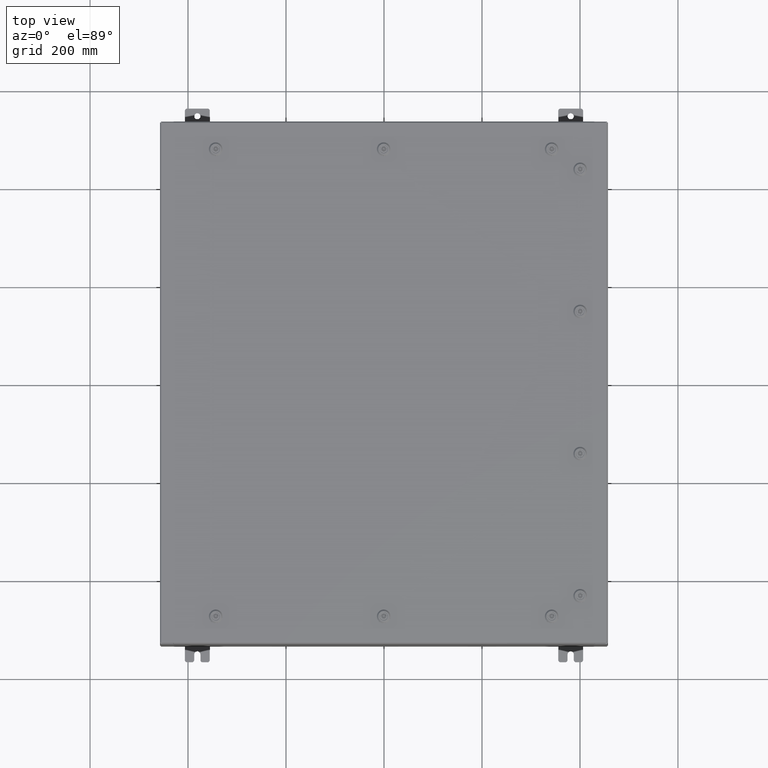
[diagram: clean part render]
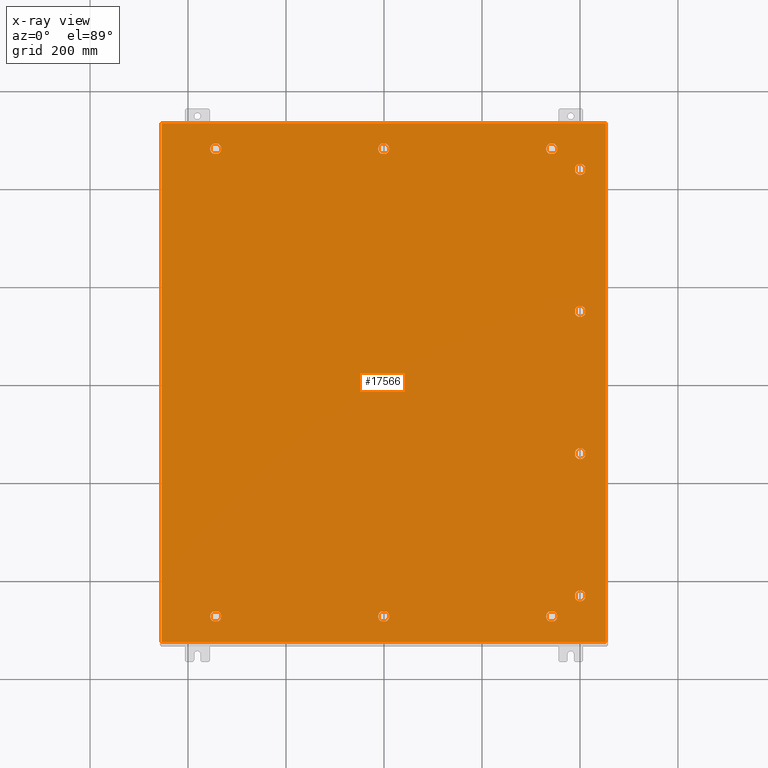
[diagram: x-ray — body ghosted, one internal face saturated and labeled with its STEP entity id]
A machine part, top view, then the same camera in x-ray: the body is ghosted and one INTERNAL B-rep face — a face not visible from any outside direction — is saturated and labeled: STEP entity #17566.
In plain terms, the highlighted planar face has unit normal (0, 0, -1).
Its self-contained STEP definition (entity closure, byte-faithful):
#63 = ORIENTED_EDGE ( 'NONE', *, *, #21294, .T. ) ;
#103 = EDGE_CURVE ( 'NONE', #49177, #21936, #17733, .T. ) ;
#155 = CIRCLE ( 'NONE', #23467, 0.4424999999999983400 ) ;
#175 = DIRECTION ( 'NONE',  ( -0.0000000000000000000, -0.0000000000000000000, 1.000000000000000000 ) ) ;
#351 = DIRECTION ( 'NONE',  ( -1.000000000000000000, 0.0000000000000000000, 0.0000000000000000000 ) ) ;
#446 = DIRECTION ( 'NONE',  ( 1.000000000000000000, -1.095739467627832000E-014, 0.0000000000000000000 ) ) ;
#453 = ORIENTED_EDGE ( 'NONE', *, *, #30594, .T. ) ;
#1036 = FACE_BOUND ( 'NONE', #14819, .T. ) ;
#1182 = CARTESIAN_POINT ( 'NONE',  ( 0.1994523752678993800, -18.39280000000000100, -0.07470000000000003000 ) ) ;
#1223 = ORIENTED_EDGE ( 'NONE', *, *, #16430, .T. ) ;
#1249 = EDGE_LOOP ( 'NONE', ( #32083, #453, #22225, #59451 ) ) ;
#1462 = CARTESIAN_POINT ( 'NONE',  ( 13.94249999999998300, 18.78780000000000100, -0.07470000000000003000 ) ) ;
#1688 = CARTESIAN_POINT ( 'NONE',  ( 15.39280000000000500, 16.93804762473213500, -0.07470000000000003000 ) ) ;
#1752 = CARTESIAN_POINT ( 'NONE',  ( 15.78780000000000400, 5.712500000000017200, -0.07470000000000003000 ) ) ;
#2008 = AXIS2_PLACEMENT_3D ( 'NONE', #12037, #49165, #17364 ) ;
#2209 = EDGE_CURVE ( 'NONE', #57222, #21838, #38677, .T. ) ;
#2567 = VERTEX_POINT ( 'NONE', #1182 ) ;
#2603 = DIRECTION ( 'NONE',  ( 5.478697338139235000E-015, 1.000000000000000000, 0.0000000000000000000 ) ) ;
#2841 = CARTESIAN_POINT ( 'NONE',  ( 0.1994523752679070700, -19.18279999999999000, -0.07470000000000000300 ) ) ;
#2904 = CARTESIAN_POINT ( 'NONE',  ( 13.30054762473210200, 18.39280000000000500, -0.07470000000000003000 ) ) ;
#3028 = ORIENTED_EDGE ( 'NONE', *, *, #56196, .T. ) ;
#3151 = EDGE_CURVE ( 'NONE', #11300, #13022, #59897, .T. ) ;
#3318 = CARTESIAN_POINT ( 'NONE',  ( 13.30054762473209500, -19.18279999999999300, -0.07470000000000003000 ) ) ;
#3493 = DIRECTION ( 'NONE',  ( 1.000000000000000000, 0.0000000000000000000, 0.0000000000000000000 ) ) ;
#3643 = ORIENTED_EDGE ( 'NONE', *, *, #6799, .T. ) ;
#3716 = DIRECTION ( 'NONE',  ( -0.0000000000000000000, -0.0000000000000000000, 1.000000000000000000 ) ) ;
#3849 = DIRECTION ( 'NONE',  ( -0.0000000000000000000, -0.0000000000000000000, 1.000000000000000000 ) ) ;
#3949 = ORIENTED_EDGE ( 'NONE', *, *, #27664, .T. ) ;
#4043 = CARTESIAN_POINT ( 'NONE',  ( -13.05749999999998900, 18.78779999999999700, -0.07470000000000003000 ) ) ;
#4150 = VECTOR ( 'NONE', #2603, 39.37007874015748100 ) ;
#4183 = VERTEX_POINT ( 'NONE', #4043 ) ;
#4199 = VERTEX_POINT ( 'NONE', #46466 ) ;
#4220 = LINE ( 'NONE', #10889, #57335 ) ;
#4455 = VERTEX_POINT ( 'NONE', #48320 ) ;
#4535 = LINE ( 'NONE', #27728, #31023 ) ;
#4655 = EDGE_CURVE ( 'NONE', #22014, #4455, #19888, .T. ) ;
#4972 = CARTESIAN_POINT ( 'NONE',  ( -13.30054762473209500, -19.18279999999999700, -0.07470000000000003000 ) ) ;
#5094 = VECTOR ( 'NONE', #22554, 39.37007874015748100 ) ;
#5204 = EDGE_LOOP ( 'NONE', ( #42979, #49145, #33965, #1223, #50452 ) ) ;
#6711 = ORIENTED_EDGE ( 'NONE', *, *, #14921, .T. ) ;
#6760 = LINE ( 'NONE', #57158, #61572 ) ;
#6772 = CARTESIAN_POINT ( 'NONE',  ( -0.1994523752678689600, -18.39280000000000100, -0.07470000000000003000 ) ) ;
#6795 = CARTESIAN_POINT ( 'NONE',  ( -13.49999999999998600, -18.78780000000000400, -0.07470000000000003000 ) ) ;
#6799 = EDGE_CURVE ( 'NONE', #13022, #49179, #32975, .T. ) ;
#7057 = DIRECTION ( 'NONE',  ( -1.000000000000000000, 0.0000000000000000000, 0.0000000000000000000 ) ) ;
#7071 = VERTEX_POINT ( 'NONE', #1462 ) ;
#7642 = CARTESIAN_POINT ( 'NONE',  ( -17.84979999999999800, 20.84980000000000200, -0.07470000000000000300 ) ) ;
#7849 = LINE ( 'NONE', #26514, #48557 ) ;
#7910 = VECTOR ( 'NONE', #32835, 39.37007874015748100 ) ;
#8295 = VERTEX_POINT ( 'NONE', #1688 ) ;
#8436 = EDGE_CURVE ( 'NONE', #13704, #62348, #59491, .T. ) ;
#8817 = CARTESIAN_POINT ( 'NONE',  ( -13.05749999999999000, -18.78780000000000400, -0.07470000000000003000 ) ) ;
#8847 = VERTEX_POINT ( 'NONE', #21548 ) ;
#9090 = VERTEX_POINT ( 'NONE', #65204 ) ;
#9341 = DIRECTION ( 'NONE',  ( -0.0000000000000000000, -0.0000000000000000000, 1.000000000000000000 ) ) ;
#9428 = DIRECTION ( 'NONE',  ( -0.0000000000000000000, -0.0000000000000000000, 1.000000000000000000 ) ) ;
#9574 = ORIENTED_EDGE ( 'NONE', *, *, #57088, .T. ) ;
#10022 = CIRCLE ( 'NONE', #20971, 0.4424999999999983400 ) ;
#10341 = EDGE_LOOP ( 'NONE', ( #12540, #31580, #46711, #27615, #45382 ) ) ;
#10352 = DIRECTION ( 'NONE',  ( -0.0000000000000000000, -0.0000000000000000000, 1.000000000000000000 ) ) ;
#10461 = DIRECTION ( 'NONE',  ( 0.0000000000000000000, 1.000000000000000000, 0.0000000000000000000 ) ) ;
#10526 = CARTESIAN_POINT ( 'NONE',  ( 13.30054762473210200, 18.39280000000000500, -0.07470000000000003000 ) ) ;
#10777 = EDGE_CURVE ( 'NONE', #62348, #4183, #18710, .T. ) ;
#10836 = ORIENTED_EDGE ( 'NONE', *, *, #12679, .T. ) ;
#10889 = CARTESIAN_POINT ( 'NONE',  ( 13.30054762473209500, -19.18279999999999300, -0.07470000000000003000 ) ) ;
#11033 = ORIENTED_EDGE ( 'NONE', *, *, #56282, .T. ) ;
#11158 = CARTESIAN_POINT ( 'NONE',  ( 15.78780000000000100, 17.13750000000001700, -0.07470000000000003000 ) ) ;
#11300 = VERTEX_POINT ( 'NONE', #28903 ) ;
#11379 = EDGE_CURVE ( 'NONE', #61150, #31368, #42717, .T. ) ;
#11441 = VERTEX_POINT ( 'NONE', #34915 ) ;
#12037 = CARTESIAN_POINT ( 'NONE',  ( 1.529834876451987200E-014, -18.78779999999999700, -0.07470000000000003000 ) ) ;
#12049 = DIRECTION ( 'NONE',  ( -0.0000000000000000000, -0.0000000000000000000, 1.000000000000000000 ) ) ;
#12102 = DIRECTION ( 'NONE',  ( 5.478697338139220100E-015, 1.000000000000000000, 0.0000000000000000000 ) ) ;
#12119 = DIRECTION ( 'NONE',  ( -1.000000000000000000, 0.0000000000000000000, 0.0000000000000000000 ) ) ;
#12254 = DIRECTION ( 'NONE',  ( -1.000000000000000000, 0.0000000000000000000, 0.0000000000000000000 ) ) ;
#12452 = CIRCLE ( 'NONE', #15011, 0.4424999999999973400 ) ;
#12540 = ORIENTED_EDGE ( 'NONE', *, *, #62533, .T. ) ;
#12670 = CARTESIAN_POINT ( 'NONE',  ( 13.69945237526786700, 19.18279999999999700, -0.07470000000000003000 ) ) ;
#12679 = EDGE_CURVE ( 'NONE', #4199, #19579, #60964, .T. ) ;
#12721 = DIRECTION ( 'NONE',  ( -0.0000000000000000000, -0.0000000000000000000, 1.000000000000000000 ) ) ;
#13022 = VERTEX_POINT ( 'NONE', #57265 ) ;
#13241 = CIRCLE ( 'NONE', #20786, 0.4424999999999983400 ) ;
#13446 = FACE_BOUND ( 'NONE', #58858, .T. ) ;
#13704 = VERTEX_POINT ( 'NONE', #36220 ) ;
#14025 = LINE ( 'NONE', #59701, #40497 ) ;
#14751 = VERTEX_POINT ( 'NONE', #58440 ) ;
#14819 = EDGE_LOOP ( 'NONE', ( #48314, #63422, #3643, #21372 ) ) ;
#14921 = EDGE_CURVE ( 'NONE', #8847, #2567, #50212, .T. ) ;
#14993 = DIRECTION ( 'NONE',  ( -0.0000000000000000000, -0.0000000000000000000, 1.000000000000000000 ) ) ;
#15007 = EDGE_CURVE ( 'NONE', #56617, #27659, #4535, .T. ) ;
#15011 = AXIS2_PLACEMENT_3D ( 'NONE', #41147, #9428, #46532 ) ;
#15081 = ORIENTED_EDGE ( 'NONE', *, *, #4655, .T. ) ;
#15323 = CARTESIAN_POINT ( 'NONE',  ( 0.0000000000000000000, 0.0000000000000000000, -0.07470000000000000300 ) ) ;
#15585 = CARTESIAN_POINT ( 'NONE',  ( 0.1994523752678995500, 18.39280000000000100, -0.07470000000000003000 ) ) ;
#15654 = VERTEX_POINT ( 'NONE', #33968 ) ;
#15829 = AXIS2_PLACEMENT_3D ( 'NONE', #35424, #3716, #40750 ) ;
#16359 = DIRECTION ( 'NONE',  ( -1.000000000000000000, 1.095739467627832000E-014, 0.0000000000000000000 ) ) ;
#16430 = EDGE_CURVE ( 'NONE', #4183, #36809, #40877, .T. ) ;
#16467 = VECTOR ( 'NONE', #10461, 39.37007874015748100 ) ;
#16497 = DIRECTION ( 'NONE',  ( -1.000000000000000000, 0.0000000000000000000, 0.0000000000000000000 ) ) ;
#16613 = ORIENTED_EDGE ( 'NONE', *, *, #64134, .T. ) ;
#16687 = ORIENTED_EDGE ( 'NONE', *, *, #32138, .T. ) ;
#17364 = DIRECTION ( 'NONE',  ( -1.000000000000000000, 0.0000000000000000000, 0.0000000000000000000 ) ) ;
#17566 = ADVANCED_FACE ( 'NONE', ( #55794, #1036, #29168, #41634, #27525, #43301, #13446, #68311, #54154, #39935, #25871 ), #52473, .T. ) ;
#17733 = LINE ( 'NONE', #27719, #45937 ) ;
#18138 = AXIS2_PLACEMENT_3D ( 'NONE', #62255, #30354, #67589 ) ;
#18172 = CIRCLE ( 'NONE', #59248, 0.4424999999999969000 ) ;
#18542 = AXIS2_PLACEMENT_3D ( 'NONE', #46755, #14993, #52146 ) ;
#18668 = EDGE_CURVE ( 'NONE', #58462, #36178, #22491, .T. ) ;
#18710 = CIRCLE ( 'NONE', #49056, 0.4424999999999983400 ) ;
#18767 = VECTOR ( 'NONE', #3493, 39.37007874015748100 ) ;
#18803 = VERTEX_POINT ( 'NONE', #23396 ) ;
#19185 = ORIENTED_EDGE ( 'NONE', *, *, #21005, .T. ) ;
#19366 = EDGE_CURVE ( 'NONE', #31264, #33317, #4220, .T. ) ;
#19430 = CIRCLE ( 'NONE', #65758, 0.4424999999999983400 ) ;
#19579 = VERTEX_POINT ( 'NONE', #54262 ) ;
#19739 = AXIS2_PLACEMENT_3D ( 'NONE', #63960, #32055, #351 ) ;
#19822 = VERTEX_POINT ( 'NONE', #39502 ) ;
#19888 = LINE ( 'NONE', #66203, #4150 ) ;
#19894 = VECTOR ( 'NONE', #16359, 39.37007874015748100 ) ;
#20173 = EDGE_CURVE ( 'NONE', #36809, #54781, #35627, .T. ) ;
#20208 = CARTESIAN_POINT ( 'NONE',  ( 13.30054762473209400, 19.18279999999999300, -0.07470000000000000300 ) ) ;
#20241 = ORIENTED_EDGE ( 'NONE', *, *, #28889, .T. ) ;
#20296 = DIRECTION ( 'NONE',  ( 0.0000000000000000000, -1.000000000000000000, 0.0000000000000000000 ) ) ;
#20589 = AXIS2_PLACEMENT_3D ( 'NONE', #31882, #175, #37221 ) ;
#20687 = CARTESIAN_POINT ( 'NONE',  ( 15.39280000000000800, -5.513047624732131200, -0.07470000000000003000 ) ) ;
#20786 = AXIS2_PLACEMENT_3D ( 'NONE', #1752, #38767, #7057 ) ;
#20971 = AXIS2_PLACEMENT_3D ( 'NONE', #43804, #12049, #49186 ) ;
#21005 = EDGE_CURVE ( 'NONE', #36178, #8295, #67234, .T. ) ;
#21294 = EDGE_CURVE ( 'NONE', #15654, #57762, #18172, .T. ) ;
#21372 = ORIENTED_EDGE ( 'NONE', *, *, #38826, .T. ) ;
#21548 = CARTESIAN_POINT ( 'NONE',  ( 0.4425000000000126100, -18.78779999999999700, -0.07470000000000003000 ) ) ;
#21647 = CARTESIAN_POINT ( 'NONE',  ( 16.18279999999999700, 17.33695237526790200, -0.07470000000000000300 ) ) ;
#21838 = VERTEX_POINT ( 'NONE', #28761 ) ;
#21887 = CARTESIAN_POINT ( 'NONE',  ( 13.49999999999998600, 18.78780000000000100, -0.07470000000000003000 ) ) ;
#21936 = VERTEX_POINT ( 'NONE', #2841 ) ;
#22014 = VERTEX_POINT ( 'NONE', #61555 ) ;
#22167 = LINE ( 'NONE', #55286, #48760 ) ;
#22174 = VECTOR ( 'NONE', #20296, 39.37007874015748100 ) ;
#22220 = EDGE_CURVE ( 'NONE', #18803, #56617, #58821, .T. ) ;
#22225 = ORIENTED_EDGE ( 'NONE', *, *, #28664, .T. ) ;
#22429 = DIRECTION ( 'NONE',  ( -0.0000000000000000000, -0.0000000000000000000, 1.000000000000000000 ) ) ;
#22491 = CIRCLE ( 'NONE', #49380, 0.4424999999999961700 ) ;
#22554 = DIRECTION ( 'NONE',  ( 1.095739467627838000E-014, -1.000000000000000000, 0.0000000000000000000 ) ) ;
#22843 = EDGE_LOOP ( 'NONE', ( #65308, #35276, #23150, #49637 ) ) ;
#22895 = EDGE_CURVE ( 'NONE', #31368, #31100, #63784, .T. ) ;
#23138 = CIRCLE ( 'NONE', #28361, 0.4424999999999983400 ) ;
#23150 = ORIENTED_EDGE ( 'NONE', *, *, #23289, .F. ) ;
#23289 = EDGE_CURVE ( 'NONE', #27659, #63574, #37900, .T. ) ;
#23345 = ORIENTED_EDGE ( 'NONE', *, *, #32024, .T. ) ;
#23396 = CARTESIAN_POINT ( 'NONE',  ( 17.84979999999999500, -20.84980000000000200, -0.07470000000000000300 ) ) ;
#23467 = AXIS2_PLACEMENT_3D ( 'NONE', #35550, #3849, #40881 ) ;
#23632 = CARTESIAN_POINT ( 'NONE',  ( -13.49999999999998600, -18.78780000000000400, -0.07470000000000003000 ) ) ;
#23747 = VECTOR ( 'NONE', #62156, 39.37007874015748100 ) ;
#24029 = VERTEX_POINT ( 'NONE', #51856 ) ;
#24215 = CARTESIAN_POINT ( 'NONE',  ( 1.529834876451987200E-014, 18.78779999999999700, -0.07470000000000003000 ) ) ;
#24269 = CARTESIAN_POINT ( 'NONE',  ( -13.49999999999998600, -18.78780000000000400, -0.07470000000000003000 ) ) ;
#24427 = ORIENTED_EDGE ( 'NONE', *, *, #35976, .T. ) ;
#24592 = VECTOR ( 'NONE', #68564, 39.37007874015748100 ) ;
#25093 = DIRECTION ( 'NONE',  ( -0.0000000000000000000, -0.0000000000000000000, 1.000000000000000000 ) ) ;
#25213 = EDGE_CURVE ( 'NONE', #53765, #49177, #47913, .T. ) ;
#25536 = EDGE_CURVE ( 'NONE', #46001, #57138, #53706, .T. ) ;
#25835 = AXIS2_PLACEMENT_3D ( 'NONE', #30375, #67610, #35704 ) ;
#25871 = FACE_OUTER_BOUND ( 'NONE', #22843, .T. ) ;
#25932 = LINE ( 'NONE', #64085, #66697 ) ;
#25954 = DIRECTION ( 'NONE',  ( -1.000000000000000000, 0.0000000000000000000, -0.0000000000000000000 ) ) ;
#26457 = AXIS2_PLACEMENT_3D ( 'NONE', #44466, #12721, #49862 ) ;
#26514 = CARTESIAN_POINT ( 'NONE',  ( 13.30054762473210400, -18.39280000000000500, -0.07470000000000003000 ) ) ;
#27210 = DIRECTION ( 'NONE',  ( -1.000000000000000000, 0.0000000000000000000, 0.0000000000000000000 ) ) ;
#27525 = FACE_BOUND ( 'NONE', #10341, .T. ) ;
#27615 = ORIENTED_EDGE ( 'NONE', *, *, #40935, .T. ) ;
#27659 = VERTEX_POINT ( 'NONE', #7642 ) ;
#27664 = EDGE_CURVE ( 'NONE', #38396, #61150, #49545, .T. ) ;
#27719 = CARTESIAN_POINT ( 'NONE',  ( 0.1994523752679067700, -19.18279999999999000, -0.07470000000000003000 ) ) ;
#27728 = CARTESIAN_POINT ( 'NONE',  ( 17.84979999999999500, 20.84980000000000500, -0.07469999999999804600 ) ) ;
#28124 = CARTESIAN_POINT ( 'NONE',  ( -13.49999999999998600, 18.78779999999999700, -0.07470000000000003000 ) ) ;
#28350 = CARTESIAN_POINT ( 'NONE',  ( 16.18280000000000000, -17.33695237526790200, -0.07470000000000003000 ) ) ;
#28361 = AXIS2_PLACEMENT_3D ( 'NONE', #6795, #43876, #12119 ) ;
#28531 = VERTEX_POINT ( 'NONE', #2904 ) ;
#28633 = LINE ( 'NONE', #10526, #30295 ) ;
#28664 = EDGE_CURVE ( 'NONE', #64306, #19822, #33620, .T. ) ;
#28761 = CARTESIAN_POINT ( 'NONE',  ( 15.39280000000001200, -5.911952375267905100, -0.07470000000000000300 ) ) ;
#28889 = EDGE_CURVE ( 'NONE', #28531, #34712, #28633, .T. ) ;
#28903 = CARTESIAN_POINT ( 'NONE',  ( 15.39280000000000800, -16.93804762473213500, -0.07470000000000003000 ) ) ;
#28948 = DIRECTION ( 'NONE',  ( -1.000000000000000000, 0.0000000000000000000, 0.0000000000000000000 ) ) ;
#29168 = FACE_BOUND ( 'NONE', #1249, .T. ) ;
#29542 = DIRECTION ( 'NONE',  ( -1.000000000000000000, 0.0000000000000000000, 0.0000000000000000000 ) ) ;
#29597 = DIRECTION ( 'NONE',  ( -1.000000000000000000, 0.0000000000000000000, 0.0000000000000000000 ) ) ;
#29605 = EDGE_CURVE ( 'NONE', #4455, #57222, #61159, .T. ) ;
#29699 = CARTESIAN_POINT ( 'NONE',  ( 15.78780000000000400, -5.712500000000013700, -0.07470000000000003000 ) ) ;
#29977 = DIRECTION ( 'NONE',  ( -0.0000000000000000000, -0.0000000000000000000, 1.000000000000000000 ) ) ;
#30030 = ORIENTED_EDGE ( 'NONE', *, *, #31000, .T. ) ;
#30295 = VECTOR ( 'NONE', #47880, 39.37007874015748100 ) ;
#30354 = DIRECTION ( 'NONE',  ( -0.0000000000000000000, -0.0000000000000000000, 1.000000000000000000 ) ) ;
#30375 = CARTESIAN_POINT ( 'NONE',  ( 13.49999999999998600, -18.78780000000000100, -0.07470000000000003000 ) ) ;
#30557 = CARTESIAN_POINT ( 'NONE',  ( 16.18280000000000000, 16.93804762473213200, -0.07470000000000003000 ) ) ;
#30594 = EDGE_CURVE ( 'NONE', #54844, #64306, #36099, .T. ) ;
#30641 = DIRECTION ( 'NONE',  ( -1.095739467627835000E-014, -1.000000000000000000, 0.0000000000000000000 ) ) ;
#30899 = AXIS2_PLACEMENT_3D ( 'NONE', #42079, #10352, #47461 ) ;
#30931 = EDGE_LOOP ( 'NONE', ( #66951, #46279, #23345, #15081 ) ) ;
#31000 = EDGE_CURVE ( 'NONE', #34712, #7071, #65250, .T. ) ;
#31023 = VECTOR ( 'NONE', #65181, 39.37007874015748100 ) ;
#31100 = VERTEX_POINT ( 'NONE', #55053 ) ;
#31264 = VERTEX_POINT ( 'NONE', #3318 ) ;
#31323 = CARTESIAN_POINT ( 'NONE',  ( 15.78780000000000400, -17.13750000000001700, -0.07470000000000003000 ) ) ;
#31368 = VERTEX_POINT ( 'NONE', #51960 ) ;
#31487 = CIRCLE ( 'NONE', #18542, 0.4424999999999961700 ) ;
#31495 = EDGE_CURVE ( 'NONE', #33391, #24029, #7849, .T. ) ;
#31571 = LINE ( 'NONE', #4972, #58224 ) ;
#31580 = ORIENTED_EDGE ( 'NONE', *, *, #36601, .T. ) ;
#31882 = CARTESIAN_POINT ( 'NONE',  ( -13.49999999999998600, 18.78779999999999700, -0.07470000000000003000 ) ) ;
#31895 = CARTESIAN_POINT ( 'NONE',  ( 13.69945237526786900, -19.18279999999999700, -0.07470000000000003000 ) ) ;
#32024 = EDGE_CURVE ( 'NONE', #21838, #22014, #19430, .T. ) ;
#32055 = DIRECTION ( 'NONE',  ( -0.0000000000000000000, -0.0000000000000000000, 1.000000000000000000 ) ) ;
#32064 = CARTESIAN_POINT ( 'NONE',  ( -13.30054762473209400, 19.18279999999999000, -0.07470000000000003000 ) ) ;
#32083 = ORIENTED_EDGE ( 'NONE', *, *, #56761, .T. ) ;
#32085 = CARTESIAN_POINT ( 'NONE',  ( -13.30054762473209500, -19.18279999999999700, -0.07470000000000000300 ) ) ;
#32138 = EDGE_CURVE ( 'NONE', #21936, #8847, #47687, .T. ) ;
#32377 = VECTOR ( 'NONE', #35269, 39.37007874015748100 ) ;
#32422 = DIRECTION ( 'NONE',  ( -1.000000000000000000, 1.095739467627836300E-014, 0.0000000000000000000 ) ) ;
#32695 = CARTESIAN_POINT ( 'NONE',  ( 0.1994523752678995500, -18.39280000000000100, -0.07470000000000003000 ) ) ;
#32835 = DIRECTION ( 'NONE',  ( -5.478697338139235000E-015, 1.000000000000000000, 0.0000000000000000000 ) ) ;
#32975 = CIRCLE ( 'NONE', #51604, 0.4424999999999961700 ) ;
#33317 = VERTEX_POINT ( 'NONE', #31895 ) ;
#33391 = VERTEX_POINT ( 'NONE', #53785 ) ;
#33450 = DIRECTION ( 'NONE',  ( -1.000000000000000000, 0.0000000000000000000, 0.0000000000000000000 ) ) ;
#33620 = CIRCLE ( 'NONE', #55319, 0.4424999999999983400 ) ;
#33965 = ORIENTED_EDGE ( 'NONE', *, *, #10777, .T. ) ;
#33968 = CARTESIAN_POINT ( 'NONE',  ( -0.1994523752678657700, 19.18279999999999300, -0.07470000000000003000 ) ) ;
#34047 = AXIS2_PLACEMENT_3D ( 'NONE', #21887, #59057, #27210 ) ;
#34712 = VERTEX_POINT ( 'NONE', #35534 ) ;
#34915 = CARTESIAN_POINT ( 'NONE',  ( 0.1994523752679069900, 19.18279999999999000, -0.07470000000000003000 ) ) ;
#34949 = CIRCLE ( 'NONE', #15829, 0.4424999999999983400 ) ;
#34989 = ORIENTED_EDGE ( 'NONE', *, *, #44755, .T. ) ;
#35005 = DIRECTION ( 'NONE',  ( -1.000000000000000000, 0.0000000000000000000, 0.0000000000000000000 ) ) ;
#35194 = CARTESIAN_POINT ( 'NONE',  ( -13.30054762473210200, 18.39280000000000100, -0.07470000000000003000 ) ) ;
#35269 = DIRECTION ( 'NONE',  ( -5.478697338139220100E-015, 1.000000000000000000, 0.0000000000000000000 ) ) ;
#35276 = ORIENTED_EDGE ( 'NONE', *, *, #68642, .F. ) ;
#35424 = CARTESIAN_POINT ( 'NONE',  ( 13.49999999999998600, 18.78780000000000100, -0.07470000000000003000 ) ) ;
#35428 = VECTOR ( 'NONE', #12254, 39.37007874015748100 ) ;
#35534 = CARTESIAN_POINT ( 'NONE',  ( 13.69945237526786900, 18.39280000000000500, -0.07470000000000003000 ) ) ;
#35550 = CARTESIAN_POINT ( 'NONE',  ( 15.78780000000000100, 17.13750000000001700, -0.07470000000000003000 ) ) ;
#35627 = LINE ( 'NONE', #32064, #19894 ) ;
#35704 = DIRECTION ( 'NONE',  ( -1.000000000000000000, 0.0000000000000000000, 0.0000000000000000000 ) ) ;
#35854 = EDGE_CURVE ( 'NONE', #19822, #67406, #6760, .T. ) ;
#35976 = EDGE_CURVE ( 'NONE', #9090, #38396, #31571, .T. ) ;
#36099 = LINE ( 'NONE', #38160, #7910 ) ;
#36178 = VERTEX_POINT ( 'NONE', #60146 ) ;
#36220 = CARTESIAN_POINT ( 'NONE',  ( -13.69945237526786900, 18.39280000000000100, -0.07470000000000003000 ) ) ;
#36492 = ORIENTED_EDGE ( 'NONE', *, *, #22895, .T. ) ;
#36601 = EDGE_CURVE ( 'NONE', #66660, #33391, #10022, .T. ) ;
#36650 = DIRECTION ( 'NONE',  ( -1.000000000000000000, 0.0000000000000000000, 0.0000000000000000000 ) ) ;
#36656 = DIRECTION ( 'NONE',  ( 1.000000000000000000, 1.095739467627832000E-014, 0.0000000000000000000 ) ) ;
#36809 = VERTEX_POINT ( 'NONE', #55789 ) ;
#36832 = CARTESIAN_POINT ( 'NONE',  ( 17.84979999999999500, -20.84980000000000200, -0.07470000000000019700 ) ) ;
#37221 = DIRECTION ( 'NONE',  ( -1.000000000000000000, 0.0000000000000000000, 0.0000000000000000000 ) ) ;
#37608 = AXIS2_PLACEMENT_3D ( 'NONE', #54247, #22429, #59609 ) ;
#37900 = LINE ( 'NONE', #46753, #22174 ) ;
#38160 = CARTESIAN_POINT ( 'NONE',  ( 16.18280000000000000, 5.911952375267903300, -0.07470000000000003000 ) ) ;
#38396 = VERTEX_POINT ( 'NONE', #32085 ) ;
#38677 = LINE ( 'NONE', #68326, #24592 ) ;
#38767 = DIRECTION ( 'NONE',  ( -0.0000000000000000000, -0.0000000000000000000, 1.000000000000000000 ) ) ;
#38826 = EDGE_CURVE ( 'NONE', #49179, #14751, #14025, .T. ) ;
#38875 = VECTOR ( 'NONE', #59597, 39.37007874015748100 ) ;
#39158 = VERTEX_POINT ( 'NONE', #30557 ) ;
#39420 = CARTESIAN_POINT ( 'NONE',  ( -13.30054762473210200, 18.39280000000000100, -0.07470000000000000300 ) ) ;
#39440 = ORIENTED_EDGE ( 'NONE', *, *, #54142, .T. ) ;
#39502 = CARTESIAN_POINT ( 'NONE',  ( 15.39280000000001200, 5.911952375267907700, -0.07470000000000003000 ) ) ;
#39935 = FACE_BOUND ( 'NONE', #51167, .T. ) ;
#40152 = VECTOR ( 'NONE', #68550, 39.37007874015748100 ) ;
#40168 = CARTESIAN_POINT ( 'NONE',  ( 13.94249999999998500, -18.78780000000000100, -0.07470000000000003000 ) ) ;
#40443 = ORIENTED_EDGE ( 'NONE', *, *, #103, .T. ) ;
#40497 = VECTOR ( 'NONE', #12102, 39.37007874015748100 ) ;
#40750 = DIRECTION ( 'NONE',  ( -1.000000000000000000, 0.0000000000000000000, 0.0000000000000000000 ) ) ;
#40751 = EDGE_LOOP ( 'NONE', ( #54877, #9574, #57167, #19185 ) ) ;
#40877 = CIRCLE ( 'NONE', #43030, 0.4424999999999983400 ) ;
#40881 = DIRECTION ( 'NONE',  ( -1.000000000000000000, 0.0000000000000000000, 0.0000000000000000000 ) ) ;
#40935 = EDGE_CURVE ( 'NONE', #24029, #31264, #47725, .T. ) ;
#41050 = CARTESIAN_POINT ( 'NONE',  ( 15.78780000000000400, -17.13750000000001700, -0.07470000000000003000 ) ) ;
#41147 = CARTESIAN_POINT ( 'NONE',  ( 1.529834876451987200E-014, 18.78779999999999700, -0.07470000000000003000 ) ) ;
#41307 = CIRCLE ( 'NONE', #20589, 0.4424999999999961700 ) ;
#41634 = FACE_BOUND ( 'NONE', #40751, .T. ) ;
#41874 = AXIS2_PLACEMENT_3D ( 'NONE', #41050, #9341, #46448 ) ;
#42079 = CARTESIAN_POINT ( 'NONE',  ( 15.78780000000000400, -5.712500000000013700, -0.07470000000000003000 ) ) ;
#42495 = DIRECTION ( 'NONE',  ( -1.000000000000000000, 0.0000000000000000000, 0.0000000000000000000 ) ) ;
#42717 = CIRCLE ( 'NONE', #60648, 0.4424999999999961700 ) ;
#42979 = ORIENTED_EDGE ( 'NONE', *, *, #50397, .T. ) ;
#43030 = AXIS2_PLACEMENT_3D ( 'NONE', #28124, #65349, #33450 ) ;
#43192 = ORIENTED_EDGE ( 'NONE', *, *, #53657, .T. ) ;
#43301 = FACE_BOUND ( 'NONE', #48338, .T. ) ;
#43495 = DIRECTION ( 'NONE',  ( 1.000000000000000000, 1.095739467627836300E-014, 0.0000000000000000000 ) ) ;
#43804 = CARTESIAN_POINT ( 'NONE',  ( 13.49999999999998600, -18.78780000000000100, -0.07470000000000003000 ) ) ;
#43876 = DIRECTION ( 'NONE',  ( -0.0000000000000000000, -0.0000000000000000000, 1.000000000000000000 ) ) ;
#44466 = CARTESIAN_POINT ( 'NONE',  ( 13.49999999999998600, -18.78780000000000100, -0.07470000000000003000 ) ) ;
#44584 = DIRECTION ( 'NONE',  ( 1.000000000000000000, -0.0000000000000000000, -0.0000000000000000000 ) ) ;
#44755 = EDGE_CURVE ( 'NONE', #11441, #15654, #25932, .T. ) ;
#45382 = ORIENTED_EDGE ( 'NONE', *, *, #19366, .T. ) ;
#45937 = VECTOR ( 'NONE', #43495, 39.37007874015748100 ) ;
#46001 = VERTEX_POINT ( 'NONE', #12670 ) ;
#46279 = ORIENTED_EDGE ( 'NONE', *, *, #2209, .T. ) ;
#46309 = EDGE_CURVE ( 'NONE', #8295, #39158, #155, .T. ) ;
#46448 = DIRECTION ( 'NONE',  ( -1.000000000000000000, 0.0000000000000000000, 0.0000000000000000000 ) ) ;
#46466 = CARTESIAN_POINT ( 'NONE',  ( 0.1994523752678995500, 18.39280000000000100, -0.07470000000000000300 ) ) ;
#46532 = DIRECTION ( 'NONE',  ( -1.000000000000000000, 4.938934225833725800E-015, 0.0000000000000000000 ) ) ;
#46711 = ORIENTED_EDGE ( 'NONE', *, *, #31495, .T. ) ;
#46753 = CARTESIAN_POINT ( 'NONE',  ( -17.84979999999999800, 20.84980000000000200, -0.07470000000000129300 ) ) ;
#46755 = CARTESIAN_POINT ( 'NONE',  ( 13.49999999999998600, 18.78780000000000100, -0.07470000000000003000 ) ) ;
#47461 = DIRECTION ( 'NONE',  ( -1.000000000000000000, 0.0000000000000000000, 0.0000000000000000000 ) ) ;
#47669 = CARTESIAN_POINT ( 'NONE',  ( -17.84980000000000200, -20.84980000000000200, -0.07470000000000000300 ) ) ;
#47687 = CIRCLE ( 'NONE', #18138, 0.4424999999999973400 ) ;
#47725 = CIRCLE ( 'NONE', #26457, 0.4424999999999961700 ) ;
#47832 = CIRCLE ( 'NONE', #25835, 0.4424999999999983400 ) ;
#47880 = DIRECTION ( 'NONE',  ( 1.000000000000000000, 0.0000000000000000000, 0.0000000000000000000 ) ) ;
#47913 = CIRCLE ( 'NONE', #2008, 0.4424999999999969000 ) ;
#48285 = DIRECTION ( 'NONE',  ( -0.0000000000000000000, -0.0000000000000000000, 1.000000000000000000 ) ) ;
#48314 = ORIENTED_EDGE ( 'NONE', *, *, #68838, .T. ) ;
#48320 = CARTESIAN_POINT ( 'NONE',  ( 16.18280000000000000, -5.513047624732131200, -0.07470000000000003000 ) ) ;
#48338 = EDGE_LOOP ( 'NONE', ( #57861, #24427, #3949, #57198, #36492 ) ) ;
#48386 = CARTESIAN_POINT ( 'NONE',  ( 17.84979999999999500, 20.84980000000000200, -0.07470000000000000300 ) ) ;
#48557 = VECTOR ( 'NONE', #42495, 39.37007874015748100 ) ;
#48760 = VECTOR ( 'NONE', #44584, 39.37007874015748100 ) ;
#48938 = CARTESIAN_POINT ( 'NONE',  ( -13.30054762473210400, -18.39280000000000800, -0.07470000000000003000 ) ) ;
#49056 = AXIS2_PLACEMENT_3D ( 'NONE', #61859, #29977, #67210 ) ;
#49145 = ORIENTED_EDGE ( 'NONE', *, *, #8436, .T. ) ;
#49165 = DIRECTION ( 'NONE',  ( -0.0000000000000000000, -0.0000000000000000000, 1.000000000000000000 ) ) ;
#49177 = VERTEX_POINT ( 'NONE', #60210 ) ;
#49179 = VERTEX_POINT ( 'NONE', #28350 ) ;
#49186 = DIRECTION ( 'NONE',  ( -1.000000000000000000, 0.0000000000000000000, 0.0000000000000000000 ) ) ;
#49380 = AXIS2_PLACEMENT_3D ( 'NONE', #11158, #48285, #16497 ) ;
#49545 = CIRCLE ( 'NONE', #62900, 0.4424999999999961700 ) ;
#49637 = ORIENTED_EDGE ( 'NONE', *, *, #15007, .F. ) ;
#49862 = DIRECTION ( 'NONE',  ( -1.000000000000000000, 0.0000000000000000000, 0.0000000000000000000 ) ) ;
#50212 = CIRCLE ( 'NONE', #37608, 0.4424999999999973400 ) ;
#50397 = EDGE_CURVE ( 'NONE', #54781, #13704, #41307, .T. ) ;
#50452 = ORIENTED_EDGE ( 'NONE', *, *, #20173, .T. ) ;
#51167 = EDGE_LOOP ( 'NONE', ( #63, #16613, #10836, #3028, #34989 ) ) ;
#51463 = CARTESIAN_POINT ( 'NONE',  ( 13.30054762473209400, 19.18279999999999300, -0.07470000000000003000 ) ) ;
#51604 = AXIS2_PLACEMENT_3D ( 'NONE', #31323, #68579, #36650 ) ;
#51679 = VECTOR ( 'NONE', #58999, 39.37007874015748100 ) ;
#51856 = CARTESIAN_POINT ( 'NONE',  ( 13.30054762473210400, -18.39280000000000500, -0.07470000000000000300 ) ) ;
#51960 = CARTESIAN_POINT ( 'NONE',  ( -13.30054762473210400, -18.39280000000000800, -0.07470000000000003000 ) ) ;
#52146 = DIRECTION ( 'NONE',  ( -1.000000000000000000, 0.0000000000000000000, 0.0000000000000000000 ) ) ;
#52473 = PLANE ( 'NONE',  #60477 ) ;
#52716 = LINE ( 'NONE', #15585, #40152 ) ;
#53657 = EDGE_CURVE ( 'NONE', #2567, #53765, #64159, .T. ) ;
#53706 = LINE ( 'NONE', #51463, #23747 ) ;
#53765 = VERTEX_POINT ( 'NONE', #6772 ) ;
#53772 = CARTESIAN_POINT ( 'NONE',  ( -0.1994523752678689600, 18.39280000000000100, -0.07470000000000003000 ) ) ;
#53785 = CARTESIAN_POINT ( 'NONE',  ( 13.69945237526787100, -18.39280000000000500, -0.07470000000000003000 ) ) ;
#54142 = EDGE_CURVE ( 'NONE', #57138, #28531, #34949, .T. ) ;
#54154 = FACE_BOUND ( 'NONE', #5204, .T. ) ;
#54247 = CARTESIAN_POINT ( 'NONE',  ( 1.529834876451987200E-014, -18.78779999999999700, -0.07470000000000003000 ) ) ;
#54262 = CARTESIAN_POINT ( 'NONE',  ( 0.4425000000000126100, 18.78779999999999700, -0.07470000000000003000 ) ) ;
#54606 = CARTESIAN_POINT ( 'NONE',  ( 15.39280000000001200, -17.33695237526790600, -0.07470000000000003000 ) ) ;
#54781 = VERTEX_POINT ( 'NONE', #63148 ) ;
#54844 = VERTEX_POINT ( 'NONE', #68735 ) ;
#54877 = ORIENTED_EDGE ( 'NONE', *, *, #46309, .T. ) ;
#55053 = CARTESIAN_POINT ( 'NONE',  ( -13.69945237526787100, -18.39280000000000800, -0.07470000000000003000 ) ) ;
#55286 = CARTESIAN_POINT ( 'NONE',  ( -17.84980000000000200, -20.84980000000000500, -0.07469999999999804600 ) ) ;
#55319 = AXIS2_PLACEMENT_3D ( 'NONE', #56917, #25093, #62312 ) ;
#55789 = CARTESIAN_POINT ( 'NONE',  ( -13.30054762473209400, 19.18279999999999000, -0.07470000000000003000 ) ) ;
#55794 = FACE_BOUND ( 'NONE', #30931, .T. ) ;
#56196 = EDGE_CURVE ( 'NONE', #19579, #11441, #12452, .T. ) ;
#56282 = EDGE_CURVE ( 'NONE', #7071, #46001, #31487, .T. ) ;
#56617 = VERTEX_POINT ( 'NONE', #48386 ) ;
#56761 = EDGE_CURVE ( 'NONE', #67406, #54844, #13241, .T. ) ;
#56917 = CARTESIAN_POINT ( 'NONE',  ( 15.78780000000000400, 5.712500000000017200, -0.07470000000000003000 ) ) ;
#57088 = EDGE_CURVE ( 'NONE', #39158, #58462, #60693, .T. ) ;
#57138 = VERTEX_POINT ( 'NONE', #20208 ) ;
#57158 = CARTESIAN_POINT ( 'NONE',  ( 15.39280000000001200, 5.911952375267907700, -0.07470000000000003000 ) ) ;
#57167 = ORIENTED_EDGE ( 'NONE', *, *, #18668, .T. ) ;
#57198 = ORIENTED_EDGE ( 'NONE', *, *, #11379, .T. ) ;
#57222 = VERTEX_POINT ( 'NONE', #20687 ) ;
#57265 = CARTESIAN_POINT ( 'NONE',  ( 15.39280000000001200, -17.33695237526790600, -0.07470000000000000300 ) ) ;
#57335 = VECTOR ( 'NONE', #446, 39.37007874015748100 ) ;
#57762 = VERTEX_POINT ( 'NONE', #53772 ) ;
#57778 = DIRECTION ( 'NONE',  ( 0.0000000000000000000, 0.0000000000000000000, -1.000000000000000000 ) ) ;
#57861 = ORIENTED_EDGE ( 'NONE', *, *, #58636, .T. ) ;
#58224 = VECTOR ( 'NONE', #36656, 39.37007874015748100 ) ;
#58440 = CARTESIAN_POINT ( 'NONE',  ( 16.18280000000000000, -16.93804762473213200, -0.07470000000000003000 ) ) ;
#58462 = VERTEX_POINT ( 'NONE', #21647 ) ;
#58636 = EDGE_CURVE ( 'NONE', #31100, #9090, #23138, .T. ) ;
#58821 = LINE ( 'NONE', #36832, #16467 ) ;
#58858 = EDGE_LOOP ( 'NONE', ( #61870, #40443, #16687, #6711, #43192 ) ) ;
#58999 = DIRECTION ( 'NONE',  ( -1.000000000000000000, 0.0000000000000000000, 0.0000000000000000000 ) ) ;
#59057 = DIRECTION ( 'NONE',  ( -0.0000000000000000000, -0.0000000000000000000, 1.000000000000000000 ) ) ;
#59248 = AXIS2_PLACEMENT_3D ( 'NONE', #24215, #61414, #29542 ) ;
#59451 = ORIENTED_EDGE ( 'NONE', *, *, #35854, .T. ) ;
#59491 = LINE ( 'NONE', #35194, #18767 ) ;
#59569 = CIRCLE ( 'NONE', #41874, 0.4424999999999983400 ) ;
#59597 = DIRECTION ( 'NONE',  ( -1.095739467627838000E-014, -1.000000000000000000, 0.0000000000000000000 ) ) ;
#59609 = DIRECTION ( 'NONE',  ( -1.000000000000000000, 0.0000000000000000000, 0.0000000000000000000 ) ) ;
#59701 = CARTESIAN_POINT ( 'NONE',  ( 16.18280000000000000, -17.33695237526790200, -0.07470000000000003000 ) ) ;
#59897 = LINE ( 'NONE', #54606, #5094 ) ;
#59902 = CARTESIAN_POINT ( 'NONE',  ( 16.18280000000000000, 5.911952375267903300, -0.07470000000000000300 ) ) ;
#60146 = CARTESIAN_POINT ( 'NONE',  ( 15.39280000000001000, 17.33695237526790600, -0.07470000000000003000 ) ) ;
#60210 = CARTESIAN_POINT ( 'NONE',  ( -0.1994523752678657700, -19.18279999999999300, -0.07470000000000003000 ) ) ;
#60477 = AXIS2_PLACEMENT_3D ( 'NONE', #15323, #57778, #25954 ) ;
#60648 = AXIS2_PLACEMENT_3D ( 'NONE', #24269, #61464, #29597 ) ;
#60693 = LINE ( 'NONE', #67172, #32377 ) ;
#60820 = DIRECTION ( 'NONE',  ( -0.0000000000000000000, -0.0000000000000000000, 1.000000000000000000 ) ) ;
#60964 = CIRCLE ( 'NONE', #19739, 0.4424999999999973400 ) ;
#61150 = VERTEX_POINT ( 'NONE', #8817 ) ;
#61159 = CIRCLE ( 'NONE', #30899, 0.4424999999999983400 ) ;
#61414 = DIRECTION ( 'NONE',  ( -0.0000000000000000000, -0.0000000000000000000, 1.000000000000000000 ) ) ;
#61464 = DIRECTION ( 'NONE',  ( -0.0000000000000000000, -0.0000000000000000000, 1.000000000000000000 ) ) ;
#61555 = CARTESIAN_POINT ( 'NONE',  ( 16.18280000000000000, -5.911952375267899700, -0.07470000000000003000 ) ) ;
#61572 = VECTOR ( 'NONE', #30641, 39.37007874015748100 ) ;
#61859 = CARTESIAN_POINT ( 'NONE',  ( -13.49999999999998600, 18.78779999999999700, -0.07470000000000003000 ) ) ;
#61870 = ORIENTED_EDGE ( 'NONE', *, *, #25213, .T. ) ;
#62156 = DIRECTION ( 'NONE',  ( -1.000000000000000000, -1.095739467627832000E-014, 0.0000000000000000000 ) ) ;
#62255 = CARTESIAN_POINT ( 'NONE',  ( 1.529834876451987200E-014, -18.78779999999999700, -0.07470000000000003000 ) ) ;
#62312 = DIRECTION ( 'NONE',  ( -1.000000000000000000, 0.0000000000000000000, 0.0000000000000000000 ) ) ;
#62348 = VERTEX_POINT ( 'NONE', #39420 ) ;
#62533 = EDGE_CURVE ( 'NONE', #33317, #66660, #47832, .T. ) ;
#62900 = AXIS2_PLACEMENT_3D ( 'NONE', #23632, #60820, #28948 ) ;
#62987 = EDGE_LOOP ( 'NONE', ( #30030, #11033, #67844, #39440, #20241 ) ) ;
#63148 = CARTESIAN_POINT ( 'NONE',  ( -13.69945237526786700, 19.18279999999999300, -0.07470000000000003000 ) ) ;
#63422 = ORIENTED_EDGE ( 'NONE', *, *, #3151, .T. ) ;
#63574 = VERTEX_POINT ( 'NONE', #47669 ) ;
#63784 = LINE ( 'NONE', #48938, #35428 ) ;
#63960 = CARTESIAN_POINT ( 'NONE',  ( 1.529834876451987200E-014, 18.78779999999999700, -0.07470000000000003000 ) ) ;
#64085 = CARTESIAN_POINT ( 'NONE',  ( 0.1994523752679067700, 19.18279999999999000, -0.07470000000000003000 ) ) ;
#64134 = EDGE_CURVE ( 'NONE', #57762, #4199, #52716, .T. ) ;
#64159 = LINE ( 'NONE', #32695, #51679 ) ;
#64306 = VERTEX_POINT ( 'NONE', #59902 ) ;
#64944 = CARTESIAN_POINT ( 'NONE',  ( 15.39280000000001000, 17.33695237526790600, -0.07470000000000003000 ) ) ;
#65181 = DIRECTION ( 'NONE',  ( -1.000000000000000000, -0.0000000000000000000, -0.0000000000000000000 ) ) ;
#65204 = CARTESIAN_POINT ( 'NONE',  ( -13.69945237526786900, -19.18280000000000000, -0.07470000000000003000 ) ) ;
#65250 = CIRCLE ( 'NONE', #34047, 0.4424999999999961700 ) ;
#65308 = ORIENTED_EDGE ( 'NONE', *, *, #22220, .F. ) ;
#65349 = DIRECTION ( 'NONE',  ( -0.0000000000000000000, -0.0000000000000000000, 1.000000000000000000 ) ) ;
#65758 = AXIS2_PLACEMENT_3D ( 'NONE', #29699, #66921, #35005 ) ;
#66203 = CARTESIAN_POINT ( 'NONE',  ( 16.18280000000000000, -5.911952375267899700, -0.07470000000000003000 ) ) ;
#66660 = VERTEX_POINT ( 'NONE', #40168 ) ;
#66697 = VECTOR ( 'NONE', #32422, 39.37007874015748100 ) ;
#66852 = CARTESIAN_POINT ( 'NONE',  ( 15.39280000000000800, 5.513047624732134700, -0.07470000000000003000 ) ) ;
#66921 = DIRECTION ( 'NONE',  ( -0.0000000000000000000, -0.0000000000000000000, 1.000000000000000000 ) ) ;
#66951 = ORIENTED_EDGE ( 'NONE', *, *, #29605, .T. ) ;
#67172 = CARTESIAN_POINT ( 'NONE',  ( 16.18279999999999700, 17.33695237526790200, -0.07470000000000003000 ) ) ;
#67210 = DIRECTION ( 'NONE',  ( -1.000000000000000000, 0.0000000000000000000, 0.0000000000000000000 ) ) ;
#67234 = LINE ( 'NONE', #64944, #38875 ) ;
#67406 = VERTEX_POINT ( 'NONE', #66852 ) ;
#67589 = DIRECTION ( 'NONE',  ( -1.000000000000000000, 0.0000000000000000000, 0.0000000000000000000 ) ) ;
#67610 = DIRECTION ( 'NONE',  ( -0.0000000000000000000, -0.0000000000000000000, 1.000000000000000000 ) ) ;
#67844 = ORIENTED_EDGE ( 'NONE', *, *, #25536, .T. ) ;
#68311 = FACE_BOUND ( 'NONE', #62987, .T. ) ;
#68326 = CARTESIAN_POINT ( 'NONE',  ( 15.39280000000001200, -5.911952375267904200, -0.07470000000000003000 ) ) ;
#68550 = DIRECTION ( 'NONE',  ( 1.000000000000000000, 0.0000000000000000000, 0.0000000000000000000 ) ) ;
#68564 = DIRECTION ( 'NONE',  ( 1.095739467627835000E-014, -1.000000000000000000, 0.0000000000000000000 ) ) ;
#68579 = DIRECTION ( 'NONE',  ( -0.0000000000000000000, -0.0000000000000000000, 1.000000000000000000 ) ) ;
#68642 = EDGE_CURVE ( 'NONE', #63574, #18803, #22167, .T. ) ;
#68735 = CARTESIAN_POINT ( 'NONE',  ( 16.18280000000000000, 5.513047624732134700, -0.07470000000000003000 ) ) ;
#68838 = EDGE_CURVE ( 'NONE', #14751, #11300, #59569, .T. ) ;